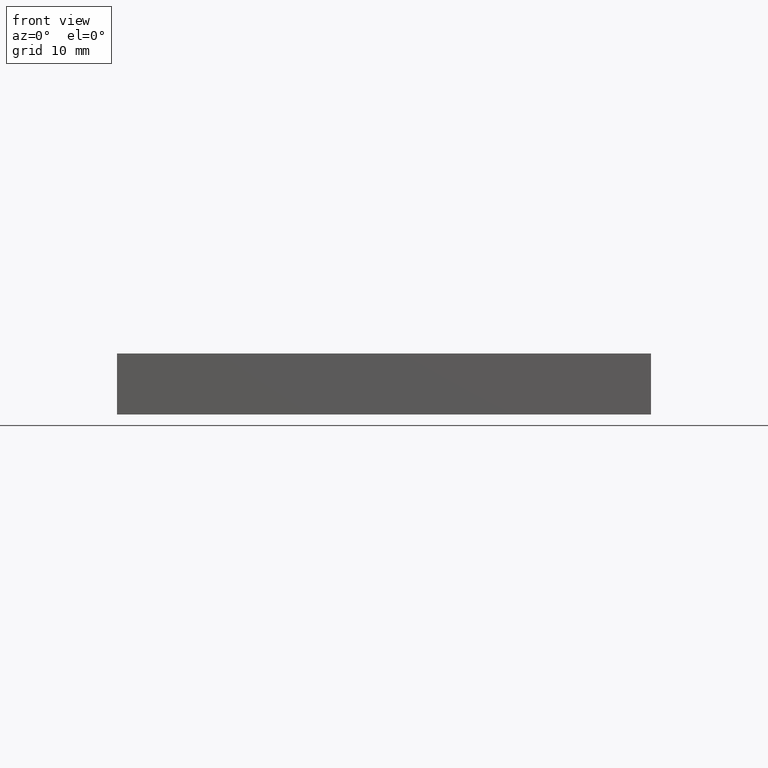
[diagram: clean part render]
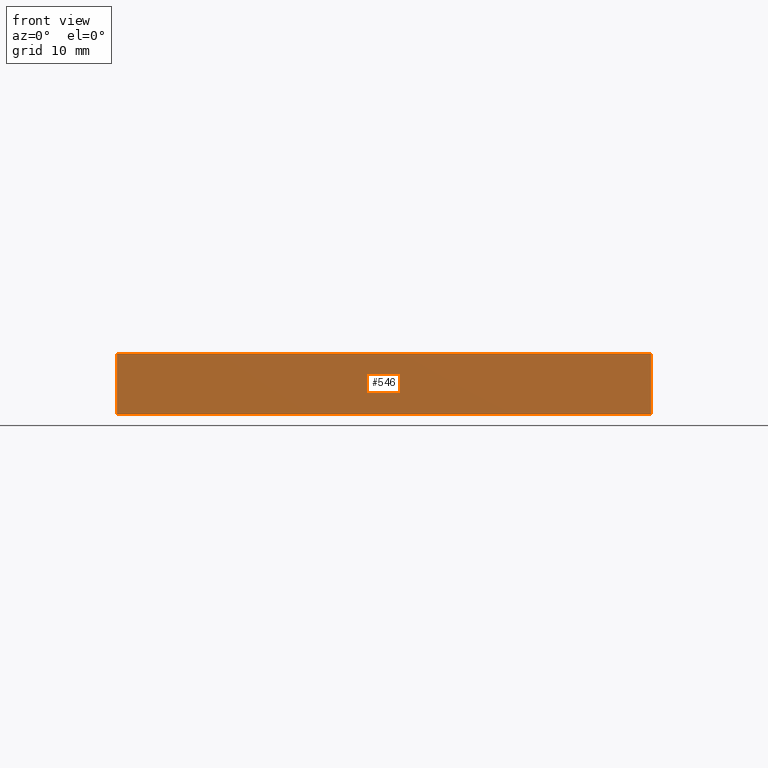
[diagram: same view with one face highlighted and labeled with its STEP entity id]
A machine part, front view. The second image highlights one B-rep face of the part: STEP entity #546.
In plain terms, the highlighted planar face has unit normal (0, -1, 0).
Its self-contained STEP definition (entity closure, byte-faithful):
#483=CARTESIAN_POINT('',(85.939752180801747,-54.027373815230888,8.0));
#484=VERTEX_POINT('',#483);
#491=CARTESIAN_POINT('',(85.939752180801747,-54.027373815230888,0.0));
#492=VERTEX_POINT('',#491);
#493=CARTESIAN_POINT('',(85.939752180801747,-54.027373815230888,0.0));
#494=DIRECTION('',(0.0,0.0,1.0));
#495=VECTOR('',#494,8.0);
#496=LINE('',#493,#495);
#497=EDGE_CURVE('',#492,#484,#496,.T.);
#516=CARTESIAN_POINT('',(85.939752180801747,-54.027373815230888,0.0));
#517=DIRECTION('',(0.0,-1.0,0.0));
#518=DIRECTION('',(0.0,0.0,-1.0));
#519=AXIS2_PLACEMENT_3D('',#516,#517,#518);
#520=PLANE('',#519);
#521=CARTESIAN_POINT('',(15.939752180801719,-54.027373815230895,8.0));
#522=VERTEX_POINT('',#521);
#523=CARTESIAN_POINT('',(85.939752180801747,-54.027373815230888,8.0));
#524=DIRECTION('',(-1.0,0.0,0.0));
#525=VECTOR('',#524,70.000000000000028);
#526=LINE('',#523,#525);
#527=EDGE_CURVE('',#484,#522,#526,.T.);
#528=ORIENTED_EDGE('',*,*,#527,.T.);
#529=CARTESIAN_POINT('',(15.939752180801719,-54.027373815230895,0.0));
#530=VERTEX_POINT('',#529);
#531=CARTESIAN_POINT('',(15.939752180801719,-54.027373815230895,0.0));
#532=DIRECTION('',(0.0,0.0,1.0));
#533=VECTOR('',#532,8.0);
#534=LINE('',#531,#533);
#535=EDGE_CURVE('',#530,#522,#534,.T.);
#536=ORIENTED_EDGE('',*,*,#535,.F.);
#537=CARTESIAN_POINT('',(15.939752180801719,-54.027373815230895,0.0));
#538=DIRECTION('',(1.0,0.0,0.0));
#539=VECTOR('',#538,70.000000000000028);
#540=LINE('',#537,#539);
#541=EDGE_CURVE('',#530,#492,#540,.T.);
#542=ORIENTED_EDGE('',*,*,#541,.T.);
#543=ORIENTED_EDGE('',*,*,#497,.T.);
#544=EDGE_LOOP('',(#528,#536,#542,#543));
#545=FACE_OUTER_BOUND('',#544,.T.);
#546=ADVANCED_FACE('',(#545),#520,.T.);